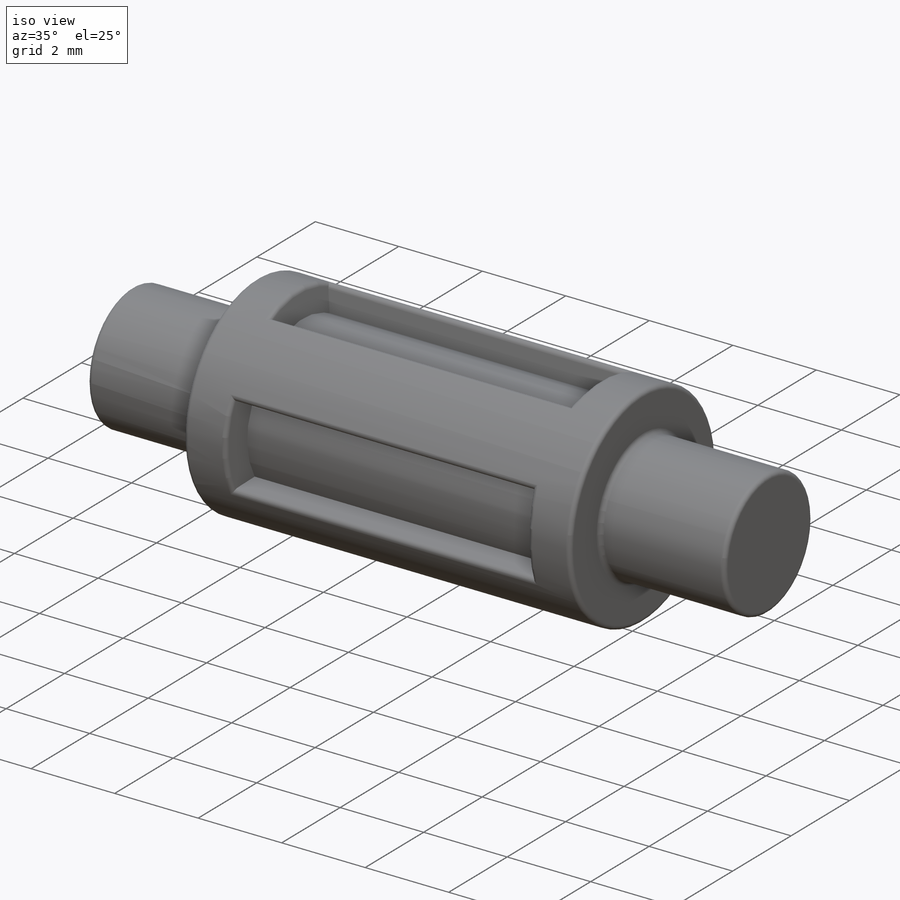
[diagram: iso view]
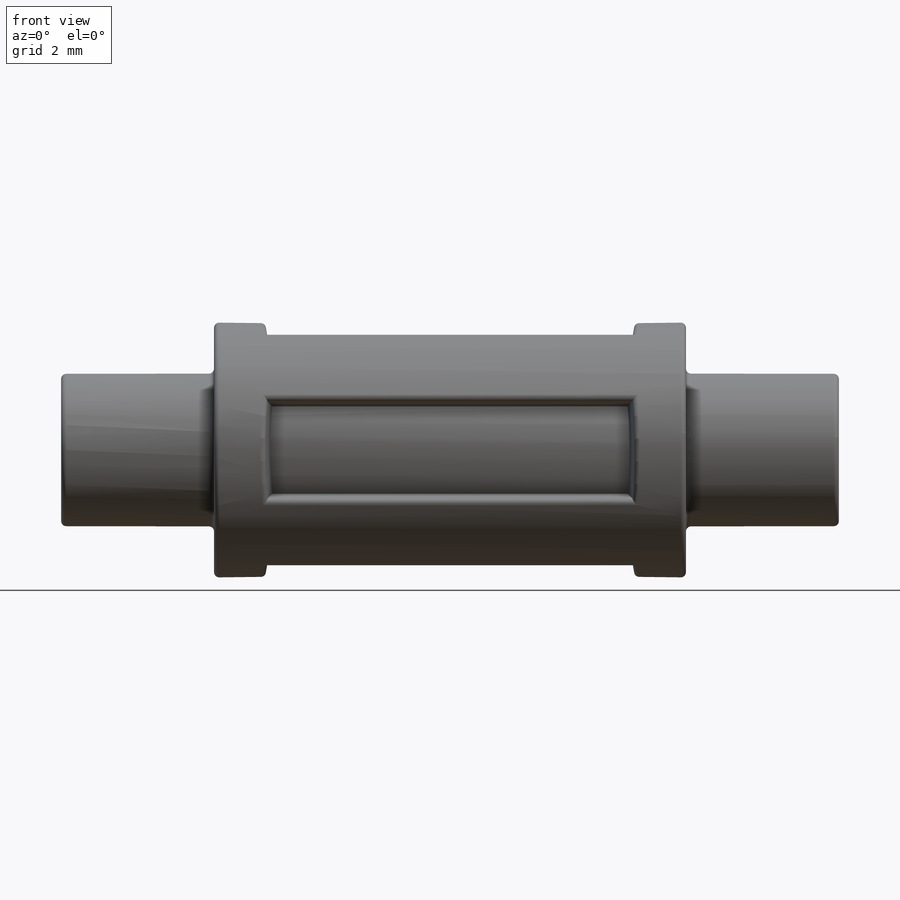
[diagram: front view]
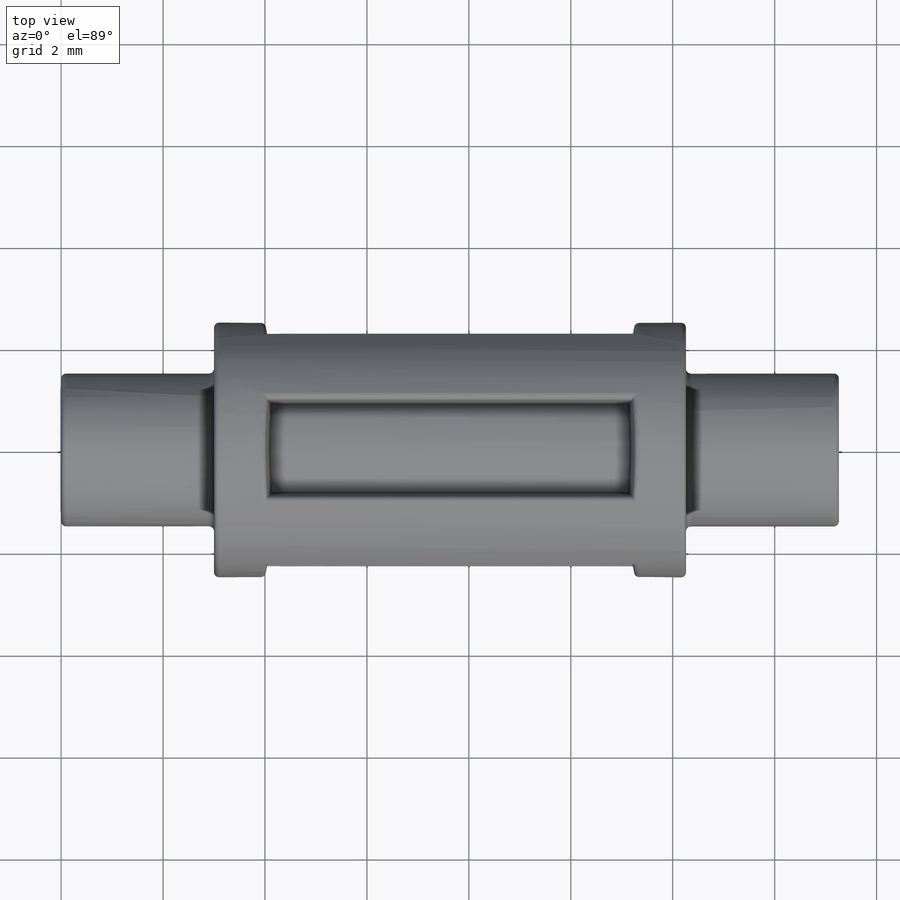
[diagram: top view]
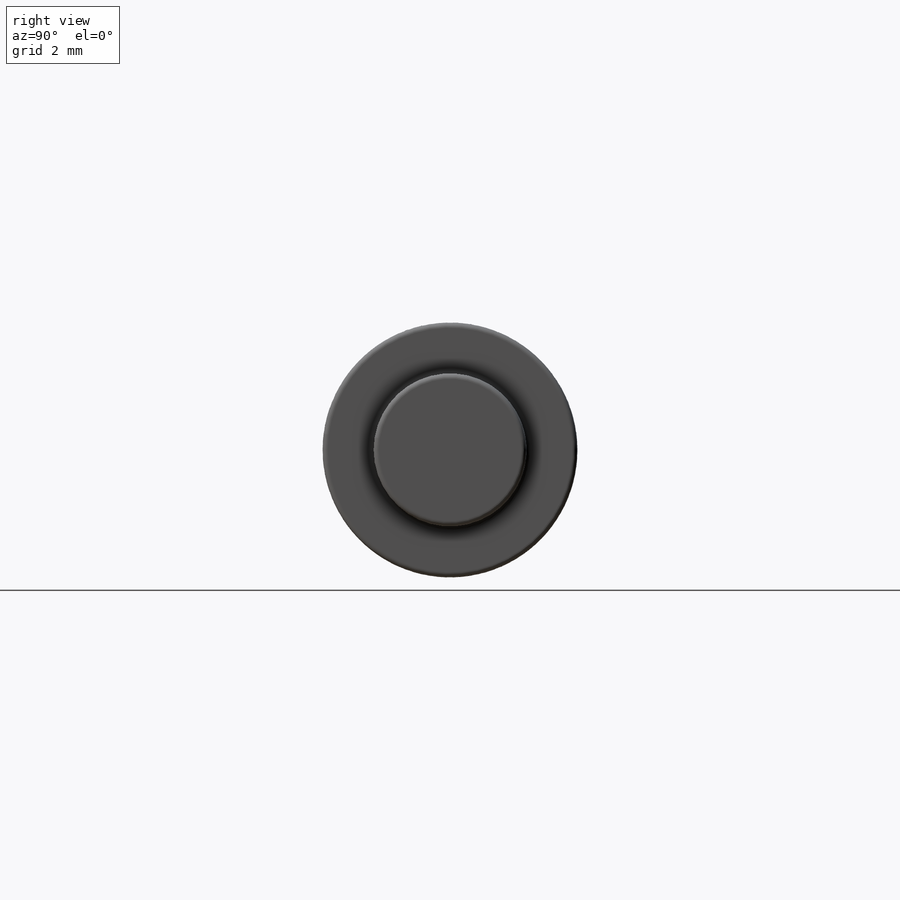
[diagram: right view]
SOLIDWORKS PART (.sldprt)
format: sldprt  version: not decoded by parser v0  size: 336,896 bytes
history: native  units: mm
features: sketch x3, fillet x2, material x1, revolve x1, plane x1, cut_extrude x1, pattern_circular x1, extrude x1 (+15 scaffold rows collapsed)
feature tree (26):
  scaffold x15  (default folders/planes/origin — collapsed)
  material  "Material <not specified>"
  sketch  "Sketch1"  dims[D1=9.26mm D2=3.0mm D3=3.0mm D4=5.0mm]
  revolve  "Revolve1"  Angle=360deg
  fillet  "Fillet1"  Radius=0.1mm
  plane  "Plane1"
  sketch  "Sketch2"  dims[D1=1.0mm D2=1.0mm D3=2.0mm]
  cut_extrude  "Cut-Extrude1"  Depth=0.8mm
  fillet  "Fillet2"  Radius=0.1mm
  pattern_circular  "CirPattern1"  Count=4 Angle=360deg
  sketch  "Sketch3"
  extrude  "Boss-Extrude1"  [1 undecoded]
decode coverage: 7 of 9 modeling features carry decoded parameters
note: 1 parameter value undecoded
note: suppression state not decoded; provenance and decode notes live in map.json
